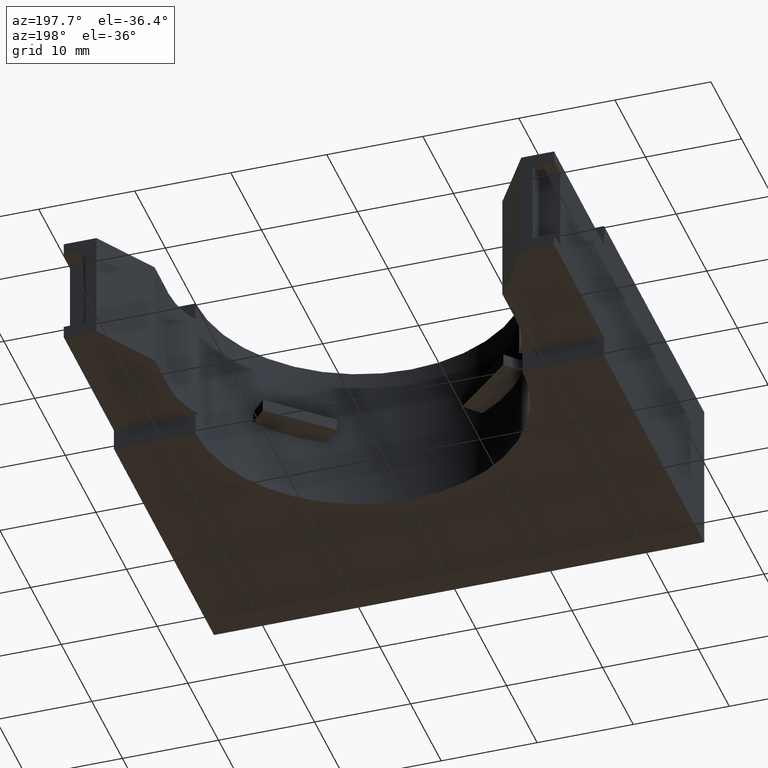
[diagram: clean part render]
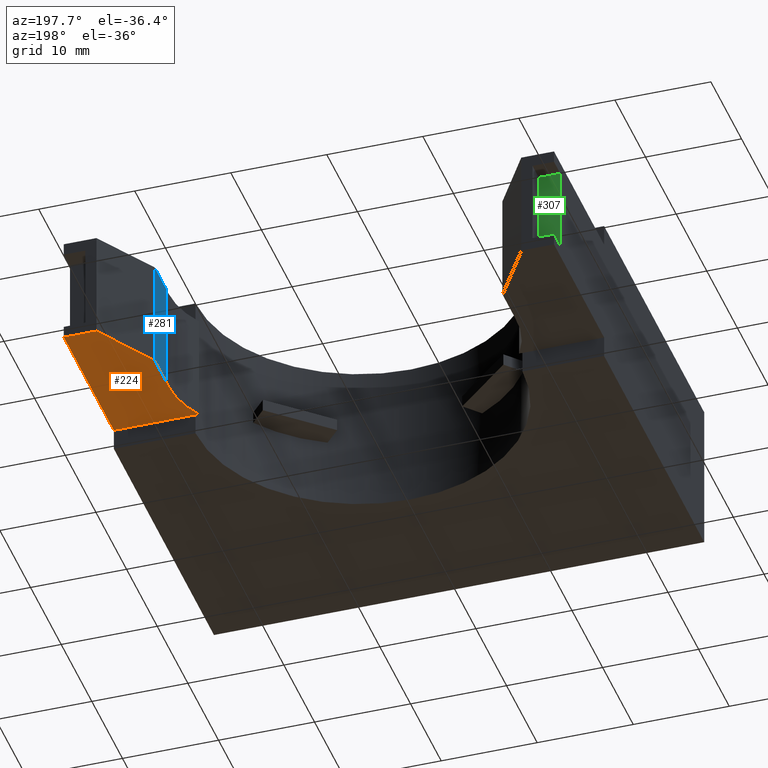
[diagram: same view with three faces highlighted in distinct colors, each labeled with its STEP entity id]
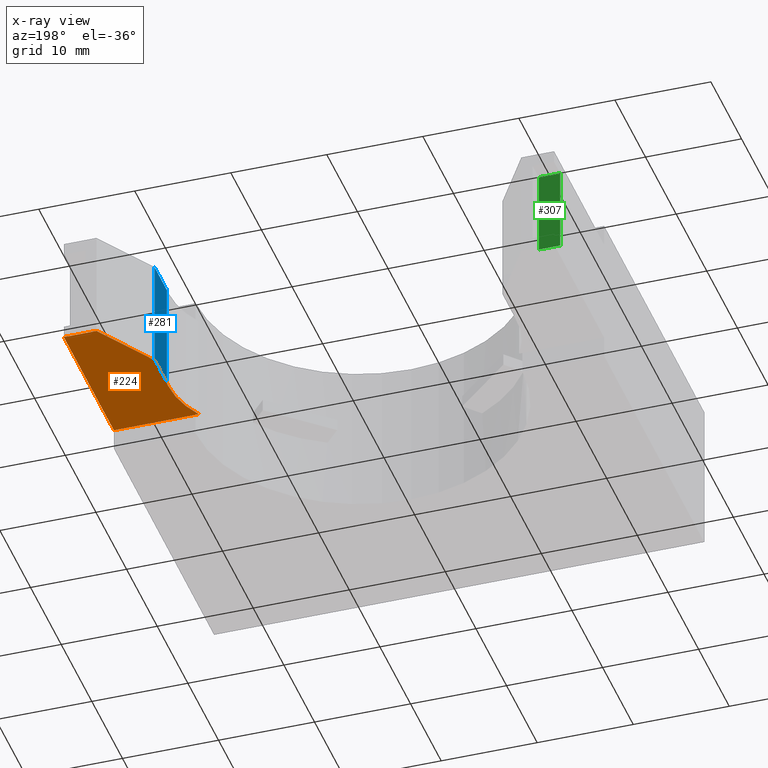
[diagram: x-ray of the same camera — body ghosted, the three highlighted faces saturated]
A machine part, auxiliary view with three faces highlighted in distinct colors.
The next image is the same camera in x-ray (body ghosted, the three faces saturated) — at least one of them is partly hidden behind the body in this view.
Their STEP definitions:

[orange] entity #224 — the highlighted planar face has unit normal (0, -0, 1).
#15 = VERTEX_POINT ( 'NONE', #673 ) ;
#43 = VERTEX_POINT ( 'NONE', #536 ) ;
#50 = VERTEX_POINT ( 'NONE', #747 ) ;
#70 = EDGE_CURVE ( 'NONE', #71, #15, #892, .T. ) ;
#71 = VERTEX_POINT ( 'NONE', #689 ) ;
#100 = VERTEX_POINT ( 'NONE', #879 ) ;
#101 = EDGE_CURVE ( 'NONE', #100, #50, #878, .T. ) ;
#203 = EDGE_CURVE ( 'NONE', #50, #359, #1125, .T. ) ;
#212 = ORIENTED_EDGE ( 'NONE', *, *, #101, .F. ) ;
#213 = ORIENTED_EDGE ( 'NONE', *, *, #244, .F. ) ;
#214 = ORIENTED_EDGE ( 'NONE', *, *, #248, .F. ) ;
#217 = EDGE_CURVE ( 'NONE', #359, #43, #992, .T. ) ;
#224 = ADVANCED_FACE ( 'NONE', ( #984 ), #982, .F. ) ;
#225 = EDGE_LOOP ( 'NONE', ( #226, #227, #228, #230, #231, #212, #213, #214 ) ) ;
#226 = ORIENTED_EDGE ( 'NONE', *, *, #331, .T. ) ;
#227 = ORIENTED_EDGE ( 'NONE', *, *, #70, .T. ) ;
#228 = ORIENTED_EDGE ( 'NONE', *, *, #229, .F. ) ;
#229 = EDGE_CURVE ( 'NONE', #43, #15, #983, .T. ) ;
#230 = ORIENTED_EDGE ( 'NONE', *, *, #217, .F. ) ;
#231 = ORIENTED_EDGE ( 'NONE', *, *, #203, .F. ) ;
#244 = EDGE_CURVE ( 'NONE', #249, #100, #1107, .T. ) ;
#248 = EDGE_CURVE ( 'NONE', #332, #249, #928, .T. ) ;
#249 = VERTEX_POINT ( 'NONE', #924 ) ;
#331 = EDGE_CURVE ( 'NONE', #332, #71, #1224, .T. ) ;
#332 = VERTEX_POINT ( 'NONE', #1166 ) ;
#359 = VERTEX_POINT ( 'NONE', #1322 ) ;
#536 = CARTESIAN_POINT ( 'NONE',  ( 0.6699999999999999300, 0.3216666666666668800, 0.08954999999999972700 ) ) ;
#673 = CARTESIAN_POINT ( 'NONE',  ( 1.005000000000000100, 0.3216666666666668800, 0.08954999999999972700 ) ) ;
#689 = CARTESIAN_POINT ( 'NONE',  ( 1.005000000000000100, 0.9650000000000000800, 0.08954999999999979600 ) ) ;
#747 = CARTESIAN_POINT ( 'NONE',  ( 0.7138269698126560300, 0.5313062846196321400, 0.08954999999999975500 ) ) ;
#874 = DIRECTION ( 'NONE',  ( 3.550541654392780200E-014, -1.000000000000000000, -1.241448130906566700E-016 ) ) ;
#875 = DIRECTION ( 'NONE',  ( -0.0000000000000000000, 1.061598961268496400E-016, -1.000000000000000000 ) ) ;
#876 = CARTESIAN_POINT ( 'NONE',  ( 0.3012269698126561200, 0.5313062846196321400, 0.08954999999999975500 ) ) ;
#877 = AXIS2_PLACEMENT_3D ( 'NONE', #876, #875, #874 ) ;
#878 = CIRCLE ( 'NONE', #877, 0.4125999999999999700 ) ;
#879 = CARTESIAN_POINT ( 'NONE',  ( 0.7131281250000002200, 0.5553104166666669200, 0.08954999999999975500 ) ) ;
#889 = DIRECTION ( 'NONE',  ( 0.0000000000000000000, -1.000000000000000000, -1.061598961268496300E-016 ) ) ;
#890 = VECTOR ( 'NONE', #889, 39.37007874015748100 ) ;
#891 = CARTESIAN_POINT ( 'NONE',  ( 1.005000000000000100, 0.9650000000000000800, 0.08954999999999979600 ) ) ;
#892 = LINE ( 'NONE', #891, #890 ) ;
#924 = CARTESIAN_POINT ( 'NONE',  ( 0.7131281250000000000, 0.7129651041666669200, 0.08954999999999976900 ) ) ;
#925 = DIRECTION ( 'NONE',  ( -0.5303203221102020800, -0.8477973554788500500, -9.000207919425252000E-017 ) ) ;
#926 = VECTOR ( 'NONE', #925, 39.37007874015748100 ) ;
#927 = CARTESIAN_POINT ( 'NONE',  ( 0.7131281250000000000, 0.7129651041666669200, 0.08954999999999976900 ) ) ;
#928 = LINE ( 'NONE', #927, #926 ) ;
#975 = DIRECTION ( 'NONE',  ( 1.000000000000000000, -0.0000000000000000000, -0.0000000000000000000 ) ) ;
#976 = VECTOR ( 'NONE', #975, 39.37007874015748100 ) ;
#977 = CARTESIAN_POINT ( 'NONE',  ( -1.005000000000000100, 0.3216666666666668800, 0.08954999999999972700 ) ) ;
#978 = DIRECTION ( 'NONE',  ( 0.0000000000000000000, -1.000000000000000000, -1.061598961268496400E-016 ) ) ;
#979 = DIRECTION ( 'NONE',  ( 0.0000000000000000000, -1.061598961268496400E-016, 1.000000000000000000 ) ) ;
#980 = CARTESIAN_POINT ( 'NONE',  ( -1.005000000000000100, 0.9650000000000000800, 0.08954999999999979600 ) ) ;
#981 = AXIS2_PLACEMENT_3D ( 'NONE', #980, #979, #978 ) ;
#982 = PLANE ( 'NONE',  #981 ) ;
#983 = LINE ( 'NONE', #977, #976 ) ;
#984 = FACE_OUTER_BOUND ( 'NONE', #225, .T. ) ;
#989 = DIRECTION ( 'NONE',  ( 1.000000000000000000, 0.0000000000000000000, 0.0000000000000000000 ) ) ;
#990 = VECTOR ( 'NONE', #989, 39.37007874015748100 ) ;
#991 = CARTESIAN_POINT ( 'NONE',  ( 0.6565999999999998500, 0.3216666666666668800, 0.08954999999999972700 ) ) ;
#992 = LINE ( 'NONE', #991, #990 ) ;
#1104 = DIRECTION ( 'NONE',  ( 8.664024003930305200E-016, -1.000000000000000000, -1.061598961268496400E-016 ) ) ;
#1105 = VECTOR ( 'NONE', #1104, 39.37007874015748100 ) ;
#1106 = CARTESIAN_POINT ( 'NONE',  ( 0.7131281250000002200, 0.5553104166666669200, 0.08954999999999975500 ) ) ;
#1107 = LINE ( 'NONE', #1106, #1105 ) ;
#1121 = DIRECTION ( 'NONE',  ( 1.738027383269193300E-015, -1.000000000000000000, -1.241448130906566700E-016 ) ) ;
#1122 = DIRECTION ( 'NONE',  ( -0.0000000000000000000, 1.061598961268496400E-016, -1.000000000000000000 ) ) ;
#1123 = CARTESIAN_POINT ( 'NONE',  ( 0.3012269698126561200, 0.5313062846196321400, 0.08954999999999975500 ) ) ;
#1124 = AXIS2_PLACEMENT_3D ( 'NONE', #1123, #1122, #1121 ) ;
#1125 = CIRCLE ( 'NONE', #1124, 0.4125999999999999700 ) ;
#1166 = CARTESIAN_POINT ( 'NONE',  ( 0.8707828124999994500, 0.9650000000000000800, 0.08954999999999979600 ) ) ;
#1221 = DIRECTION ( 'NONE',  ( 1.000000000000000000, -0.0000000000000000000, -0.0000000000000000000 ) ) ;
#1222 = VECTOR ( 'NONE', #1221, 39.37007874015748100 ) ;
#1223 = CARTESIAN_POINT ( 'NONE',  ( -1.005000000000000100, 0.9650000000000000800, 0.08954999999999979600 ) ) ;
#1224 = LINE ( 'NONE', #1223, #1222 ) ;
#1322 = CARTESIAN_POINT ( 'NONE',  ( 0.6565999999999995200, 0.3216666666666668800, 0.08954999999999972700 ) ) ;

[blue] entity #281 — the highlighted planar face has unit normal (1, 0, 0).
#99 = EDGE_CURVE ( 'NONE', #100, #167, #883, .T. ) ;
#100 = VERTEX_POINT ( 'NONE', #879 ) ;
#167 = VERTEX_POINT ( 'NONE', #937 ) ;
#243 = ORIENTED_EDGE ( 'NONE', *, *, #244, .T. ) ;
#244 = EDGE_CURVE ( 'NONE', #249, #100, #1107, .T. ) ;
#245 = ORIENTED_EDGE ( 'NONE', *, *, #99, .T. ) ;
#246 = ORIENTED_EDGE ( 'NONE', *, *, #368, .T. ) ;
#249 = VERTEX_POINT ( 'NONE', #924 ) ;
#251 = EDGE_CURVE ( 'NONE', #249, #252, #923, .T. ) ;
#252 = VERTEX_POINT ( 'NONE', #919 ) ;
#281 = ADVANCED_FACE ( 'NONE', ( #1141 ), #1140, .F. ) ;
#282 = EDGE_LOOP ( 'NONE', ( #283, #243, #245, #246 ) ) ;
#283 = ORIENTED_EDGE ( 'NONE', *, *, #251, .F. ) ;
#368 = EDGE_CURVE ( 'NONE', #167, #252, #1302, .T. ) ;
#879 = CARTESIAN_POINT ( 'NONE',  ( 0.7131281250000002200, 0.5553104166666669200, 0.08954999999999975500 ) ) ;
#880 = DIRECTION ( 'NONE',  ( -0.0000000000000000000, -0.0000000000000000000, 1.000000000000000000 ) ) ;
#881 = VECTOR ( 'NONE', #880, 39.37007874015748100 ) ;
#882 = CARTESIAN_POINT ( 'NONE',  ( 0.7131281250000002200, 0.5553104166666669200, 0.0000000000000000000 ) ) ;
#883 = LINE ( 'NONE', #882, #881 ) ;
#919 = CARTESIAN_POINT ( 'NONE',  ( 0.7131281250000000000, 0.7129651041666669200, 0.5404500000000003200 ) ) ;
#920 = DIRECTION ( 'NONE',  ( -0.0000000000000000000, -0.0000000000000000000, 1.000000000000000000 ) ) ;
#921 = VECTOR ( 'NONE', #920, 39.37007874015748100 ) ;
#922 = CARTESIAN_POINT ( 'NONE',  ( 0.7131281250000000000, 0.7129651041666669200, 0.0000000000000000000 ) ) ;
#923 = LINE ( 'NONE', #922, #921 ) ;
#924 = CARTESIAN_POINT ( 'NONE',  ( 0.7131281250000000000, 0.7129651041666669200, 0.08954999999999976900 ) ) ;
#937 = CARTESIAN_POINT ( 'NONE',  ( 0.7131281250000002200, 0.5553104166666669200, 0.5404500000000003200 ) ) ;
#1104 = DIRECTION ( 'NONE',  ( 8.664024003930305200E-016, -1.000000000000000000, -1.061598961268496400E-016 ) ) ;
#1105 = VECTOR ( 'NONE', #1104, 39.37007874015748100 ) ;
#1106 = CARTESIAN_POINT ( 'NONE',  ( 0.7131281250000002200, 0.5553104166666669200, 0.08954999999999975500 ) ) ;
#1107 = LINE ( 'NONE', #1106, #1105 ) ;
#1136 = DIRECTION ( 'NONE',  ( -8.664024003930303200E-016, 1.000000000000000000, 0.0000000000000000000 ) ) ;
#1137 = DIRECTION ( 'NONE',  ( 1.000000000000000000, 8.664024003930303200E-016, 0.0000000000000000000 ) ) ;
#1138 = AXIS2_PLACEMENT_3D ( 'NONE', #1139, #1137, #1136 ) ;
#1139 = CARTESIAN_POINT ( 'NONE',  ( 0.7131281250000002200, 0.5553104166666669200, 0.0000000000000000000 ) ) ;
#1140 = PLANE ( 'NONE',  #1138 ) ;
#1141 = FACE_OUTER_BOUND ( 'NONE', #282, .T. ) ;
#1299 = DIRECTION ( 'NONE',  ( -8.664024003930305200E-016, 1.000000000000000000, 2.123197922536992600E-016 ) ) ;
#1300 = VECTOR ( 'NONE', #1299, 39.37007874015748100 ) ;
#1301 = CARTESIAN_POINT ( 'NONE',  ( 0.7131281250000002200, 0.5553104166666667000, 0.5404500000000003200 ) ) ;
#1302 = LINE ( 'NONE', #1301, #1300 ) ;

[green] entity #307 — the highlighted planar face has unit normal (0, 1, -0).
#69 = VERTEX_POINT ( 'NONE', #851 ) ;
#242 = VERTEX_POINT ( 'NONE', #1108 ) ;
#296 = EDGE_CURVE ( 'NONE', #69, #242, #964, .T. ) ;
#305 = EDGE_CURVE ( 'NONE', #242, #402, #949, .T. ) ;
#307 = ADVANCED_FACE ( 'NONE', ( #945 ), #944, .T. ) ;
#308 = EDGE_LOOP ( 'NONE', ( #309, #310, #311, #312 ) ) ;
#309 = ORIENTED_EDGE ( 'NONE', *, *, #296, .T. ) ;
#310 = ORIENTED_EDGE ( 'NONE', *, *, #305, .T. ) ;
#311 = ORIENTED_EDGE ( 'NONE', *, *, #321, .T. ) ;
#312 = ORIENTED_EDGE ( 'NONE', *, *, #613, .T. ) ;
#321 = EDGE_CURVE ( 'NONE', #402, #614, #1261, .T. ) ;
#402 = VERTEX_POINT ( 'NONE', #1231 ) ;
#613 = EDGE_CURVE ( 'NONE', #614, #69, #1414, .T. ) ;
#614 = VERTEX_POINT ( 'NONE', #1410 ) ;
#851 = CARTESIAN_POINT ( 'NONE',  ( -1.005000000000000100, 0.8850000000000001200, 0.1397750000000000900 ) ) ;
#940 = DIRECTION ( 'NONE',  ( 0.0000000000000000000, 0.0000000000000000000, 1.000000000000000000 ) ) ;
#941 = DIRECTION ( 'NONE',  ( 0.0000000000000000000, 1.000000000000000000, -0.0000000000000000000 ) ) ;
#942 = AXIS2_PLACEMENT_3D ( 'NONE', #943, #941, #940 ) ;
#943 = CARTESIAN_POINT ( 'NONE',  ( -1.004999999999999900, 0.8850000000000001200, 0.1397750000000000900 ) ) ;
#944 = PLANE ( 'NONE',  #942 ) ;
#945 = FACE_OUTER_BOUND ( 'NONE', #308, .T. ) ;
#946 = DIRECTION ( 'NONE',  ( 1.000000000000000000, 0.0000000000000000000, -7.760326186090724000E-016 ) ) ;
#947 = VECTOR ( 'NONE', #946, 39.37007874015748100 ) ;
#948 = CARTESIAN_POINT ( 'NONE',  ( -1.005000000000000100, 0.8850000000000001200, 0.4902249999999999700 ) ) ;
#949 = LINE ( 'NONE', #948, #947 ) ;
#961 = DIRECTION ( 'NONE',  ( -7.795257507959093200E-016, 0.0000000000000000000, 1.000000000000000000 ) ) ;
#962 = VECTOR ( 'NONE', #961, 39.37007874015748100 ) ;
#963 = CARTESIAN_POINT ( 'NONE',  ( -1.004999999999999900, 0.8850000000000001200, 0.1397750000000000900 ) ) ;
#964 = LINE ( 'NONE', #963, #962 ) ;
#1108 = CARTESIAN_POINT ( 'NONE',  ( -1.005000000000000100, 0.8850000000000001200, 0.4902249999999999700 ) ) ;
#1231 = CARTESIAN_POINT ( 'NONE',  ( -0.9169931325000001400, 0.8850000000000001200, 0.4902249999999999100 ) ) ;
#1259 = VECTOR ( 'NONE', #1264, 39.37007874015748100 ) ;
#1260 = CARTESIAN_POINT ( 'NONE',  ( -0.9169931324999997000, 0.8850000000000001200, 0.1397750000000000900 ) ) ;
#1261 = LINE ( 'NONE', #1260, #1259 ) ;
#1264 = DIRECTION ( 'NONE',  ( 1.559051501591818600E-015, -0.0000000000000000000, -1.000000000000000000 ) ) ;
#1410 = CARTESIAN_POINT ( 'NONE',  ( -0.9169931324999997000, 0.8850000000000001200, 0.1397750000000000900 ) ) ;
#1411 = DIRECTION ( 'NONE',  ( -1.000000000000000000, -0.0000000000000000000, -0.0000000000000000000 ) ) ;
#1412 = VECTOR ( 'NONE', #1411, 39.37007874015748100 ) ;
#1413 = CARTESIAN_POINT ( 'NONE',  ( -1.004999999999999900, 0.8850000000000001200, 0.1397750000000000900 ) ) ;
#1414 = LINE ( 'NONE', #1413, #1412 ) ;